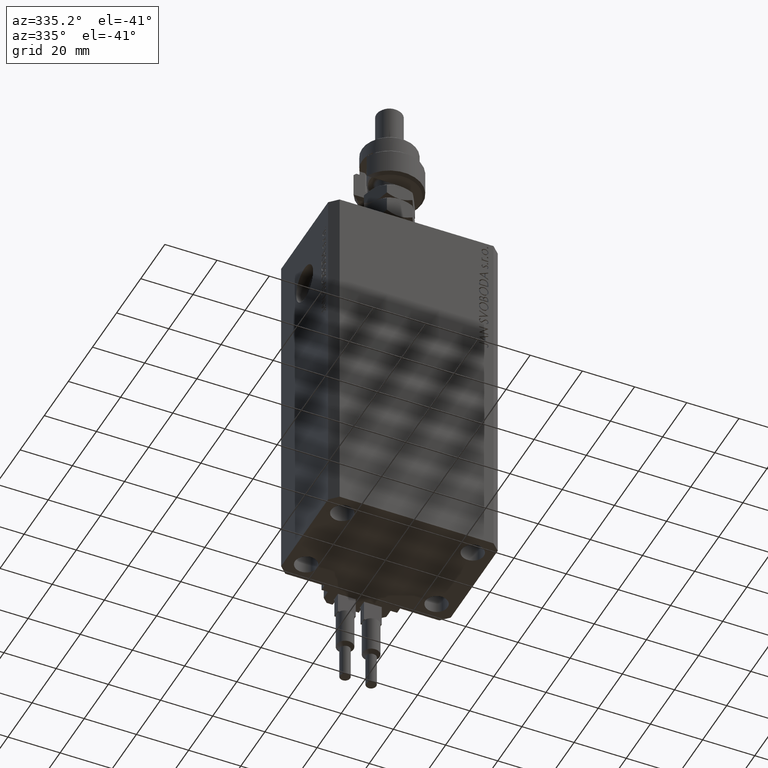
[diagram: clean part render]
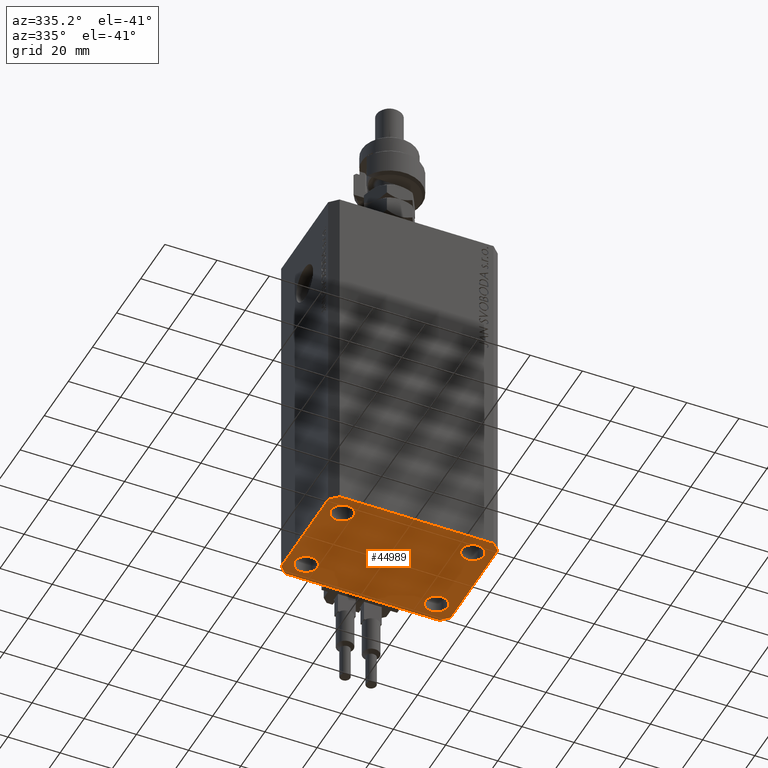
[diagram: same view with one face highlighted and labeled with its STEP entity id]
A machine part, auxiliary view. The second image highlights one B-rep face of the part: STEP entity #44989.
In plain terms, the highlighted planar face has unit normal (0, 0, 1).
Its self-contained STEP definition (entity closure, byte-faithful):
#50 = EDGE_CURVE ( 'NONE', #8874, #11470, #16765, .T. ) ;
#134 = DIRECTION ( 'NONE',  ( -0.000000000000000000, -0.000000000000000000, -1.000000000000000000 ) ) ;
#179 = EDGE_CURVE ( 'NONE', #1695, #11428, #47605, .T. ) ;
#429 = DIRECTION ( 'NONE',  ( -0.000000000000000000, -0.000000000000000000, -1.000000000000000000 ) ) ;
#732 = CARTESIAN_POINT ( 'NONE',  ( 32.49999999999651124, -19.49999999999949196, -137.0000000000000000 ) ) ;
#967 = AXIS2_PLACEMENT_3D ( 'NONE', #36307, #4198, #19872 ) ;
#1413 = EDGE_CURVE ( 'NONE', #11428, #23823, #22087, .T. ) ;
#1571 = DIRECTION ( 'NONE',  ( -0.000000000000000000, -0.000000000000000000, -1.000000000000000000 ) ) ;
#1695 = VERTEX_POINT ( 'NONE', #732 ) ;
#2140 = CARTESIAN_POINT ( 'NONE',  ( -20.74999999997862687, 14.99999999999999645, -137.0000000000000000 ) ) ;
#2265 = VERTEX_POINT ( 'NONE', #47589 ) ;
#3004 = CARTESIAN_POINT ( 'NONE',  ( 29.49999999999707967, 22.49999999999952038, -137.0000000000000000 ) ) ;
#4023 = DIRECTION ( 'NONE',  ( 1.000000000000000000, 0.000000000000000000, 0.000000000000000000 ) ) ;
#4198 = DIRECTION ( 'NONE',  ( -0.000000000000000000, -0.000000000000000000, -1.000000000000000000 ) ) ;
#4281 = CARTESIAN_POINT ( 'NONE',  ( 24.99999999999999289, -15.00000000000000355, -137.0000000000000000 ) ) ;
#4576 = VERTEX_POINT ( 'NONE', #2140 ) ;
#4960 = AXIS2_PLACEMENT_3D ( 'NONE', #6164, #48853, #36765 ) ;
#5704 = CARTESIAN_POINT ( 'NONE',  ( -29.49999999999650413, 22.49999999999949907, -137.0000000000000000 ) ) ;
#6164 = CARTESIAN_POINT ( 'NONE',  ( -24.99999999999999289, -15.00000000000000355, -137.0000000000000000 ) ) ;
#6411 = CARTESIAN_POINT ( 'NONE',  ( 0.000000000000000000, 0.000000000000000000, -137.0000000000000000 ) ) ;
#7871 = VECTOR ( 'NONE', #44263, 1000.000000000000000 ) ;
#8663 = ORIENTED_EDGE ( 'NONE', *, *, #36441, .F. ) ;
#8696 = ORIENTED_EDGE ( 'NONE', *, *, #48762, .F. ) ;
#8874 = VERTEX_POINT ( 'NONE', #28199 ) ;
#9314 = EDGE_CURVE ( 'NONE', #40572, #35557, #48382, .T. ) ;
#9547 = DIRECTION ( 'NONE',  ( 1.000000000000000000, 0.000000000000000000, 0.000000000000000000 ) ) ;
#9843 = VECTOR ( 'NONE', #15077, 1000.000000000000000 ) ;
#10096 = CARTESIAN_POINT ( 'NONE',  ( -25.00000000000000000, 14.99999999999999645, -137.0000000000000000 ) ) ;
#10273 = FACE_BOUND ( 'NONE', #27090, .T. ) ;
#10481 = ORIENTED_EDGE ( 'NONE', *, *, #33915, .F. ) ;
#10839 = ORIENTED_EDGE ( 'NONE', *, *, #27392, .F. ) ;
#10951 = VECTOR ( 'NONE', #28330, 1000.000000000000114 ) ;
#10982 = CARTESIAN_POINT ( 'NONE',  ( -32.49999999999650413, 19.49999999999949907, -137.0000000000000000 ) ) ;
#11132 = CARTESIAN_POINT ( 'NONE',  ( 32.49999999999702993, 19.49999999999945999, -137.0000000000000000 ) ) ;
#11428 = VERTEX_POINT ( 'NONE', #11132 ) ;
#11470 = VERTEX_POINT ( 'NONE', #34507 ) ;
#11618 = ORIENTED_EDGE ( 'NONE', *, *, #50, .F. ) ;
#11625 = CIRCLE ( 'NONE', #19025, 4.249999999976314058 ) ;
#12389 = CARTESIAN_POINT ( 'NONE',  ( 32.49999999999651124, -19.49999999999949196, -137.0000000000000000 ) ) ;
#12561 = ORIENTED_EDGE ( 'NONE', *, *, #39573, .F. ) ;
#12563 = CIRCLE ( 'NONE', #41301, 4.249999999976314058 ) ;
#12800 = AXIS2_PLACEMENT_3D ( 'NONE', #6411, #37757, #34128 ) ;
#14096 = CARTESIAN_POINT ( 'NONE',  ( -29.25000000004036593, -15.00000000000000355, -137.0000000000000000 ) ) ;
#14341 = CARTESIAN_POINT ( 'NONE',  ( -29.25000000002137668, 14.99999999999999645, -137.0000000000000000 ) ) ;
#14431 = DIRECTION ( 'NONE',  ( -0.000000000000000000, -0.000000000000000000, -1.000000000000000000 ) ) ;
#15077 = DIRECTION ( 'NONE',  ( -1.000000000000000000, -3.528251137580330676E-16, 0.000000000000000000 ) ) ;
#15086 = DIRECTION ( 'NONE',  ( 0.000000000000000000, -1.000000000000000000, 0.000000000000000000 ) ) ;
#15584 = AXIS2_PLACEMENT_3D ( 'NONE', #10096, #14431, #25999 ) ;
#15682 = EDGE_CURVE ( 'NONE', #2265, #34906, #12563, .T. ) ;
#15757 = VERTEX_POINT ( 'NONE', #50612 ) ;
#16765 = LINE ( 'NONE', #48112, #7871 ) ;
#17256 = AXIS2_PLACEMENT_3D ( 'NONE', #33406, #1571, #30035 ) ;
#17674 = ORIENTED_EDGE ( 'NONE', *, *, #30119, .F. ) ;
#18005 = DIRECTION ( 'NONE',  ( -0.000000000000000000, -0.000000000000000000, -1.000000000000000000 ) ) ;
#18347 = ORIENTED_EDGE ( 'NONE', *, *, #179, .F. ) ;
#19025 = AXIS2_PLACEMENT_3D ( 'NONE', #4281, #429, #4023 ) ;
#19660 = CARTESIAN_POINT ( 'NONE',  ( -25.00000000000000000, 14.99999999999999645, -137.0000000000000000 ) ) ;
#19813 = ORIENTED_EDGE ( 'NONE', *, *, #34912, .F. ) ;
#19872 = DIRECTION ( 'NONE',  ( 1.000000000000000000, 0.000000000000000000, 0.000000000000000000 ) ) ;
#20867 = CARTESIAN_POINT ( 'NONE',  ( 29.49999999999650413, -22.49999999999949196, -137.0000000000000000 ) ) ;
#21510 = VECTOR ( 'NONE', #29802, 1000.000000000000000 ) ;
#21558 = ORIENTED_EDGE ( 'NONE', *, *, #45249, .F. ) ;
#22035 = VERTEX_POINT ( 'NONE', #34625 ) ;
#22087 = LINE ( 'NONE', #44997, #35863 ) ;
#22091 = PLANE ( 'NONE',  #12800 ) ;
#23288 = ORIENTED_EDGE ( 'NONE', *, *, #1413, .F. ) ;
#23823 = VERTEX_POINT ( 'NONE', #32382 ) ;
#25025 = CARTESIAN_POINT ( 'NONE',  ( -32.49999999999650413, 19.49999999999949907, -137.0000000000000000 ) ) ;
#25999 = DIRECTION ( 'NONE',  ( 1.000000000000000000, 0.000000000000000000, 0.000000000000000000 ) ) ;
#26151 = LINE ( 'NONE', #10982, #45356 ) ;
#26192 = FACE_BOUND ( 'NONE', #43489, .T. ) ;
#27029 = EDGE_CURVE ( 'NONE', #4576, #50519, #37777, .T. ) ;
#27090 = EDGE_LOOP ( 'NONE', ( #33038, #43124 ) ) ;
#27100 = CIRCLE ( 'NONE', #4960, 4.250000000040370374 ) ;
#27177 = CIRCLE ( 'NONE', #967, 4.249999999957291053 ) ;
#27392 = EDGE_CURVE ( 'NONE', #15757, #41032, #34453, .T. ) ;
#28060 = DIRECTION ( 'NONE',  ( 1.334402673828349134E-14, 1.000000000000000000, 0.000000000000000000 ) ) ;
#28199 = CARTESIAN_POINT ( 'NONE',  ( -29.49999999999650413, -22.49999999999949907, -137.0000000000000000 ) ) ;
#28330 = DIRECTION ( 'NONE',  ( 0.7071067811865474617, -0.7071067811865474617, 0.000000000000000000 ) ) ;
#28360 = EDGE_LOOP ( 'NONE', ( #10839, #38759 ) ) ;
#28944 = DIRECTION ( 'NONE',  ( 1.000000000000000000, 0.000000000000000000, 0.000000000000000000 ) ) ;
#29125 = CARTESIAN_POINT ( 'NONE',  ( -29.49999999999650413, 22.49999999999949907, -137.0000000000000000 ) ) ;
#29802 = DIRECTION ( 'NONE',  ( 0.7071067811865483499, 0.7071067811865466846, 0.000000000000000000 ) ) ;
#30035 = DIRECTION ( 'NONE',  ( 1.000000000000000000, 0.000000000000000000, 0.000000000000000000 ) ) ;
#30119 = EDGE_CURVE ( 'NONE', #23823, #40572, #35101, .T. ) ;
#30542 = FACE_OUTER_BOUND ( 'NONE', #30739, .T. ) ;
#30739 = EDGE_LOOP ( 'NONE', ( #17674, #23288, #18347, #19813, #11618, #12561, #8663, #33787 ) ) ;
#31429 = EDGE_CURVE ( 'NONE', #41032, #15757, #27100, .T. ) ;
#31705 = VECTOR ( 'NONE', #28060, 1000.000000000000000 ) ;
#32382 = CARTESIAN_POINT ( 'NONE',  ( 29.49999999999707967, 22.49999999999952038, -137.0000000000000000 ) ) ;
#33038 = ORIENTED_EDGE ( 'NONE', *, *, #15682, .F. ) ;
#33406 = CARTESIAN_POINT ( 'NONE',  ( -24.99999999999999289, -15.00000000000000355, -137.0000000000000000 ) ) ;
#33409 = CARTESIAN_POINT ( 'NONE',  ( 20.75000000002367884, -15.00000000000000355, -137.0000000000000000 ) ) ;
#33787 = ORIENTED_EDGE ( 'NONE', *, *, #9314, .F. ) ;
#33884 = FACE_BOUND ( 'NONE', #28360, .T. ) ;
#33915 = EDGE_CURVE ( 'NONE', #22035, #49871, #27177, .T. ) ;
#34128 = DIRECTION ( 'NONE',  ( 1.000000000000000000, 0.000000000000000000, -0.000000000000000000 ) ) ;
#34453 = CIRCLE ( 'NONE', #17256, 4.250000000040370374 ) ;
#34483 = LINE ( 'NONE', #35758, #10951 ) ;
#34507 = CARTESIAN_POINT ( 'NONE',  ( 29.49999999999650413, -22.49999999999949196, -137.0000000000000000 ) ) ;
#34625 = CARTESIAN_POINT ( 'NONE',  ( 29.24999999995729283, 14.99999999999999289, -137.0000000000000000 ) ) ;
#34773 = VERTEX_POINT ( 'NONE', #47336 ) ;
#34906 = VERTEX_POINT ( 'NONE', #33409 ) ;
#34912 = EDGE_CURVE ( 'NONE', #11470, #1695, #36263, .T. ) ;
#35101 = LINE ( 'NONE', #3004, #9843 ) ;
#35393 = VECTOR ( 'NONE', #48130, 1000.000000000000114 ) ;
#35479 = EDGE_CURVE ( 'NONE', #34906, #2265, #11625, .T. ) ;
#35557 = VERTEX_POINT ( 'NONE', #25025 ) ;
#35758 = CARTESIAN_POINT ( 'NONE',  ( -32.49999999999650413, -19.49999999999949907, -137.0000000000000000 ) ) ;
#35829 = EDGE_LOOP ( 'NONE', ( #40952, #21558 ) ) ;
#35863 = VECTOR ( 'NONE', #41136, 1000.000000000000000 ) ;
#36263 = LINE ( 'NONE', #20867, #21510 ) ;
#36307 = CARTESIAN_POINT ( 'NONE',  ( 25.00000000000000000, 14.99999999999999289, -137.0000000000000000 ) ) ;
#36441 = EDGE_CURVE ( 'NONE', #35557, #34773, #26151, .T. ) ;
#36765 = DIRECTION ( 'NONE',  ( 1.000000000000000000, 0.000000000000000000, 0.000000000000000000 ) ) ;
#37271 = CARTESIAN_POINT ( 'NONE',  ( 24.99999999999999289, -15.00000000000000355, -137.0000000000000000 ) ) ;
#37757 = DIRECTION ( 'NONE',  ( 0.000000000000000000, 0.000000000000000000, 1.000000000000000000 ) ) ;
#37777 = CIRCLE ( 'NONE', #15584, 4.250000000021375790 ) ;
#38759 = ORIENTED_EDGE ( 'NONE', *, *, #31429, .F. ) ;
#39573 = EDGE_CURVE ( 'NONE', #34773, #8874, #34483, .T. ) ;
#40572 = VERTEX_POINT ( 'NONE', #29125 ) ;
#40952 = ORIENTED_EDGE ( 'NONE', *, *, #27029, .F. ) ;
#41032 = VERTEX_POINT ( 'NONE', #14096 ) ;
#41136 = DIRECTION ( 'NONE',  ( -0.7071067811865344721, 0.7071067811865606734, 0.000000000000000000 ) ) ;
#41301 = AXIS2_PLACEMENT_3D ( 'NONE', #37271, #18005, #9547 ) ;
#41629 = FACE_BOUND ( 'NONE', #35829, .T. ) ;
#43124 = ORIENTED_EDGE ( 'NONE', *, *, #35479, .F. ) ;
#43489 = EDGE_LOOP ( 'NONE', ( #10481, #8696 ) ) ;
#44263 = DIRECTION ( 'NONE',  ( 1.000000000000000000, 1.176083712526788232E-16, 0.000000000000000000 ) ) ;
#44841 = CIRCLE ( 'NONE', #48902, 4.250000000021375790 ) ;
#44989 = ADVANCED_FACE ( 'NONE', ( #33884, #10273, #26192, #41629, #30542 ), #22091, .F. ) ;
#44997 = CARTESIAN_POINT ( 'NONE',  ( 32.49999999999702993, 19.49999999999945999, -137.0000000000000000 ) ) ;
#45249 = EDGE_CURVE ( 'NONE', #50519, #4576, #44841, .T. ) ;
#45356 = VECTOR ( 'NONE', #15086, 1000.000000000000000 ) ;
#45628 = DIRECTION ( 'NONE',  ( -0.000000000000000000, -0.000000000000000000, -1.000000000000000000 ) ) ;
#45771 = CIRCLE ( 'NONE', #49087, 4.249999999957291053 ) ;
#47336 = CARTESIAN_POINT ( 'NONE',  ( -32.49999999999650413, -19.49999999999949907, -137.0000000000000000 ) ) ;
#47431 = DIRECTION ( 'NONE',  ( 1.000000000000000000, 0.000000000000000000, 0.000000000000000000 ) ) ;
#47589 = CARTESIAN_POINT ( 'NONE',  ( 29.24999999997631051, -15.00000000000000355, -137.0000000000000000 ) ) ;
#47605 = LINE ( 'NONE', #12389, #31705 ) ;
#48112 = CARTESIAN_POINT ( 'NONE',  ( -29.49999999999650413, -22.49999999999949907, -137.0000000000000000 ) ) ;
#48130 = DIRECTION ( 'NONE',  ( -0.7071067811865474617, -0.7071067811865474617, 0.000000000000000000 ) ) ;
#48239 = CARTESIAN_POINT ( 'NONE',  ( 25.00000000000000000, 14.99999999999999289, -137.0000000000000000 ) ) ;
#48382 = LINE ( 'NONE', #5704, #35393 ) ;
#48762 = EDGE_CURVE ( 'NONE', #49871, #22035, #45771, .T. ) ;
#48853 = DIRECTION ( 'NONE',  ( -0.000000000000000000, -0.000000000000000000, -1.000000000000000000 ) ) ;
#48902 = AXIS2_PLACEMENT_3D ( 'NONE', #19660, #134, #47431 ) ;
#48931 = CARTESIAN_POINT ( 'NONE',  ( 20.75000000004271072, 14.99999999999999289, -137.0000000000000000 ) ) ;
#49087 = AXIS2_PLACEMENT_3D ( 'NONE', #48239, #45628, #28944 ) ;
#49871 = VERTEX_POINT ( 'NONE', #48931 ) ;
#50519 = VERTEX_POINT ( 'NONE', #14341 ) ;
#50612 = CARTESIAN_POINT ( 'NONE',  ( -20.74999999995962341, -15.00000000000000355, -137.0000000000000000 ) ) ;